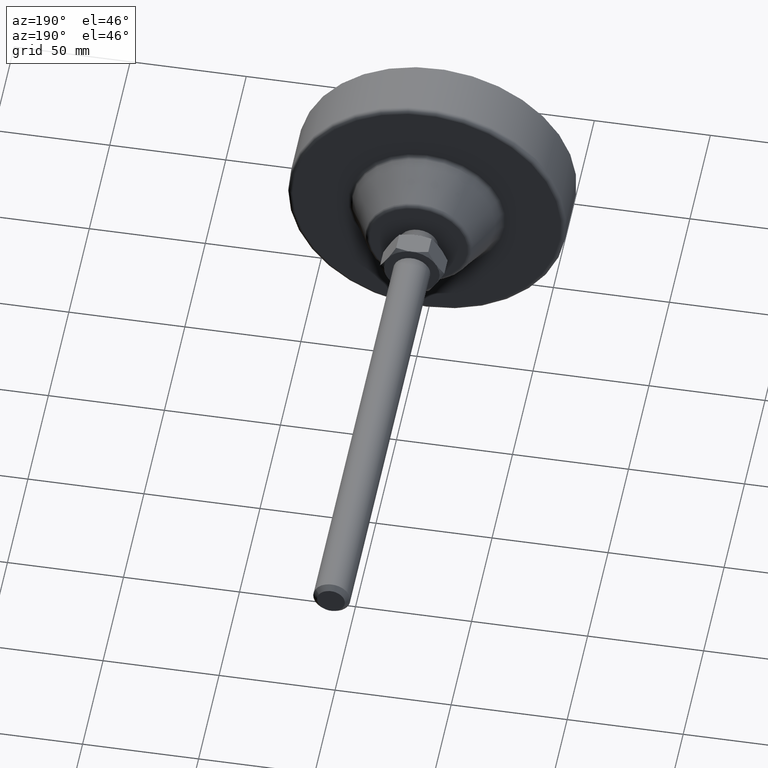
[diagram: clean part render]
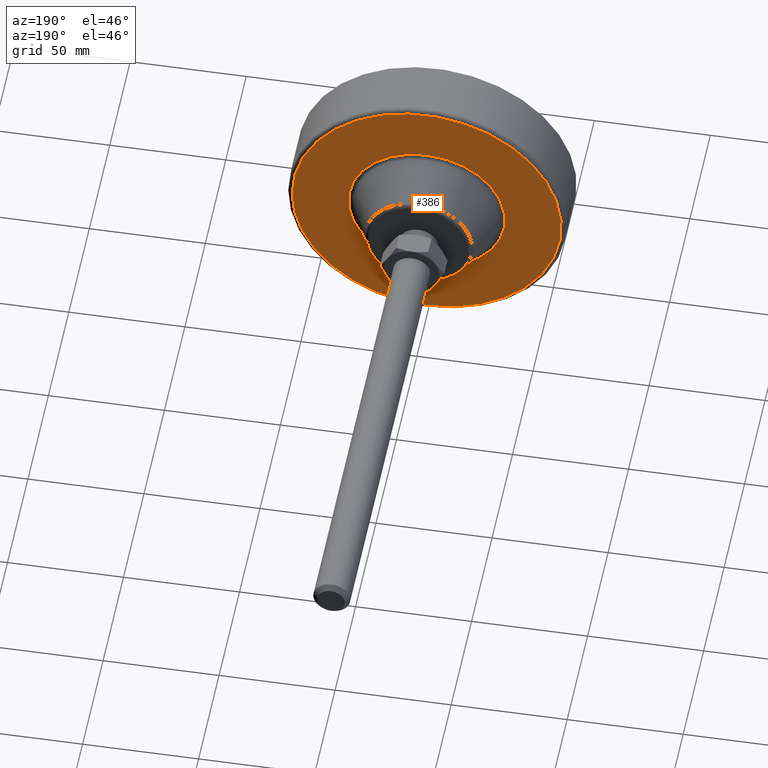
[diagram: same view with one face highlighted and labeled with its STEP entity id]
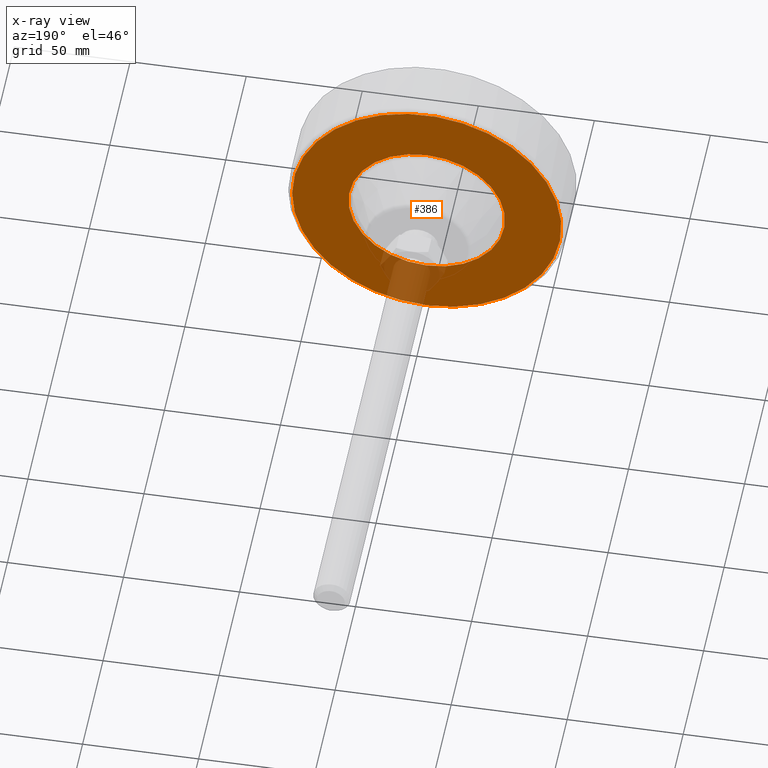
[diagram: x-ray of the same camera — body ghosted, the highlighted face saturated]
A machine part, auxiliary view. The second image highlights one B-rep face of the part: STEP entity #386.
The next image is the same camera in x-ray: the body ghosted, the highlighted face saturated — about 8% of this face is hidden behind the body in this view.
In plain terms, the highlighted planar face has unit normal (0, 1, 0).
Its self-contained STEP definition (entity closure, byte-faithful):
#48=FACE_BOUND('',#121,.T.);
#52=PLANE('',#479);
#96=FACE_OUTER_BOUND('',#120,.T.);
#120=EDGE_LOOP('',(#280,#281));
#121=EDGE_LOOP('',(#282));
#149=CIRCLE('',#475,33.7360679774998);
#152=CIRCLE('',#480,58.);
#153=CIRCLE('',#481,58.);
#175=VERTEX_POINT('',#654);
#178=VERTEX_POINT('',#664);
#179=VERTEX_POINT('',#665);
#216=EDGE_CURVE('',#175,#175,#149,.T.);
#220=EDGE_CURVE('',#178,#179,#152,.T.);
#221=EDGE_CURVE('',#179,#178,#153,.T.);
#280=ORIENTED_EDGE('',*,*,#220,.F.);
#281=ORIENTED_EDGE('',*,*,#221,.F.);
#282=ORIENTED_EDGE('',*,*,#216,.F.);
#386=ADVANCED_FACE('',(#96,#48),#52,.T.);
#475=AXIS2_PLACEMENT_3D('',#656,#536,#537);
#479=AXIS2_PLACEMENT_3D('',#663,#545,#546);
#480=AXIS2_PLACEMENT_3D('',#666,#547,#548);
#481=AXIS2_PLACEMENT_3D('',#667,#549,#550);
#536=DIRECTION('center_axis',(0.,1.,0.));
#537=DIRECTION('ref_axis',(-1.22464679914735E-16,0.,-1.));
#545=DIRECTION('center_axis',(0.,1.,0.));
#546=DIRECTION('ref_axis',(0.,0.,1.));
#547=DIRECTION('center_axis',(0.,-1.,0.));
#548=DIRECTION('ref_axis',(-1.,0.,0.));
#549=DIRECTION('center_axis',(0.,-1.,0.));
#550=DIRECTION('ref_axis',(-1.,0.,0.));
#654=CARTESIAN_POINT('',(8.26295353289253E-15,26.,33.7360679774998));
#656=CARTESIAN_POINT('Origin',(0.,26.,0.));
#663=CARTESIAN_POINT('Origin',(-4.55978304268534E-15,26.,-9.86864910777917E-16));
#664=CARTESIAN_POINT('',(58.,26.,7.10295143505465E-15));
#665=CARTESIAN_POINT('',(-7.10295143505465E-15,26.,-58.));
#666=CARTESIAN_POINT('Origin',(0.,26.,0.));
#667=CARTESIAN_POINT('Origin',(0.,26.,0.));